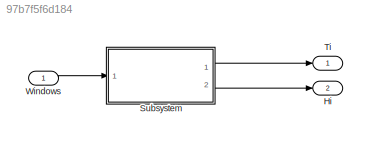
MODEL slx_97b7f5f6d184
KIND model
CONFIG AbsTol = auto
CONFIG EnableMultiTasking = off
CONFIG FixedStep = auto
CONFIG MaxStep = auto
CONFIG MinStep = auto
CONFIG RelTol = 1e-3
CONFIG SampleTimeConstraint = Unconstrained
CONFIG SolverName = VariableStepAuto
CONFIG StartTime = 0.0
CONFIG StopTime = tspan(end)
BLOCK [Outport] Hi
  Port = 2
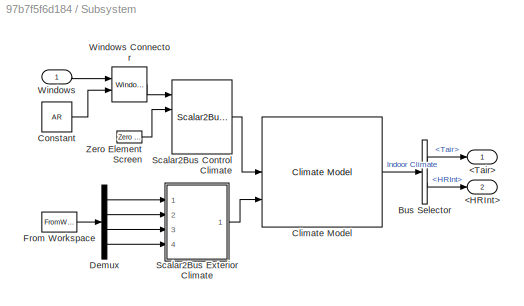
BLOCK [SubSystem] Subsystem
  Ports = [1, 2]
  RequestExecContextInheritance = off
BLOCK [Outport] Subsystem/<HRInt>
  Port = 2
BLOCK [Outport] Subsystem/<Tair>
BLOCK [BusSelector] Subsystem/Bus Selector
  OutputSignals = Temp.Tair,Gas.HRInt
  Ports = [1, 2]
BLOCK [Reference] Subsystem/Climate Model  REF=HORTISIM/Climate/Models/Climate Model
  Ports = [3, 1]
  SourceBlock = HORTISIM/Climate/Models/Climate Model
  SourceProductName = Horti Simulator
BLOCK [Constant] Subsystem/Constant
  Value = AR
BLOCK [Demux] Subsystem/Demux
  Ports = [1, 4]
BLOCK [FromWorkspace] Subsystem/From Workspace
  VariableName = EC
BLOCK [Reference] Subsystem/Scalar2Bus Control Climate  REF=HORTISIM/Other 
Functions/Scalar2Bus 
Control Climate
  Ports = [4, 1]
  SourceBlock = HORTISIM/Other \nFunctions/Scalar2Bus \nControl Climate
  SourceProductName = Horti Simulator
  SourceType = SubSystem
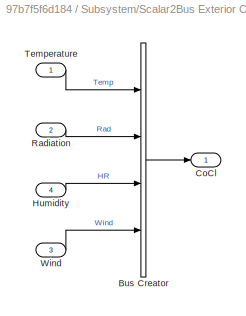
BLOCK [SubSystem] Subsystem/Scalar2Bus Exterior Climate
  Ports = [4, 1]
  RequestExecContextInheritance = off
BLOCK [BusCreator] Subsystem/Scalar2Bus Exterior Climate/Bus Creator
  DisplayOption = bar
  InheritFromInputs = on
  Inputs = 4
  Ports = [4, 1]
BLOCK [Outport] Subsystem/Scalar2Bus Exterior Climate/CoCl
BLOCK [Inport] Subsystem/Scalar2Bus Exterior Climate/Humidity
  Port = 4
BLOCK [Inport] Subsystem/Scalar2Bus Exterior Climate/Radiation
  Port = 2
BLOCK [Inport] Subsystem/Scalar2Bus Exterior Climate/Temperature
BLOCK [Inport] Subsystem/Scalar2Bus Exterior Climate/Wind
  Port = 3
BLOCK [Inport] Subsystem/Windows
BLOCK [Reference] Subsystem/Windows Connector  REF=HORTISIM/Other 
Functions/Windows
Connector
  Ports = [2, 1]
  SourceBlock = HORTISIM/Other \nFunctions/Windows\nConnector
  SourceProductName = Horti Simulator
  SourceType = SubSystem
BLOCK [Reference] Subsystem/Zero Element Screen  REF=HORTISIM/Other 
Functions/Zero Element
Screen
  Ports = [0, 1]
  SourceBlock = HORTISIM/Other \nFunctions/Zero Element\nScreen
  SourceProductName = Horti Simulator
  SourceType = SubSystem
BLOCK [Outport] Ti
BLOCK [Inport] Windows
LINE Subsystem/Bus Selector:1 -> Subsystem/<Tair>:1
LINE Subsystem/Bus Selector:2 -> Subsystem/<HRInt>:1
LINE Subsystem/Climate Model:1 -> Subsystem/Bus Selector:1
LINE Subsystem/Constant:1 -> Subsystem/Windows Connector:2
LINE Subsystem/Demux:1 -> Subsystem/Scalar2Bus Exterior Climate:1
LINE Subsystem/Demux:2 -> Subsystem/Scalar2Bus Exterior Climate:2
LINE Subsystem/Demux:3 -> Subsystem/Scalar2Bus Exterior Climate:3
LINE Subsystem/Demux:4 -> Subsystem/Scalar2Bus Exterior Climate:4
LINE Subsystem/From Workspace:1 -> Subsystem/Demux:1
LINE Subsystem/Scalar2Bus Control Climate:1 -> Subsystem/Climate Model:2
LINE Subsystem/Scalar2Bus Exterior Climate/Bus Creator:1 -> Subsystem/Scalar2Bus Exterior Climate/CoCl:1
LINE Subsystem/Scalar2Bus Exterior Climate/Humidity:1 -> Subsystem/Scalar2Bus Exterior Climate/Bus Creator:3
LINE Subsystem/Scalar2Bus Exterior Climate/Radiation:1 -> Subsystem/Scalar2Bus Exterior Climate/Bus Creator:2
LINE Subsystem/Scalar2Bus Exterior Climate/Temperature:1 -> Subsystem/Scalar2Bus Exterior Climate/Bus Creator:1
LINE Subsystem/Scalar2Bus Exterior Climate/Wind:1 -> Subsystem/Scalar2Bus Exterior Climate/Bus Creator:4
LINE Subsystem/Scalar2Bus Exterior Climate:1 -> Subsystem/Climate Model:3
LINE Subsystem/Windows Connector:1 -> Subsystem/Scalar2Bus Control Climate:1
LINE Subsystem/Windows:1 -> Subsystem/Windows Connector:1
LINE Subsystem/Zero Element Screen:1 -> Subsystem/Scalar2Bus Control Climate:2
LINE Subsystem:1 -> Ti:1
LINE Subsystem:2 -> Hi:1
LINE Windows:1 -> Subsystem:1
